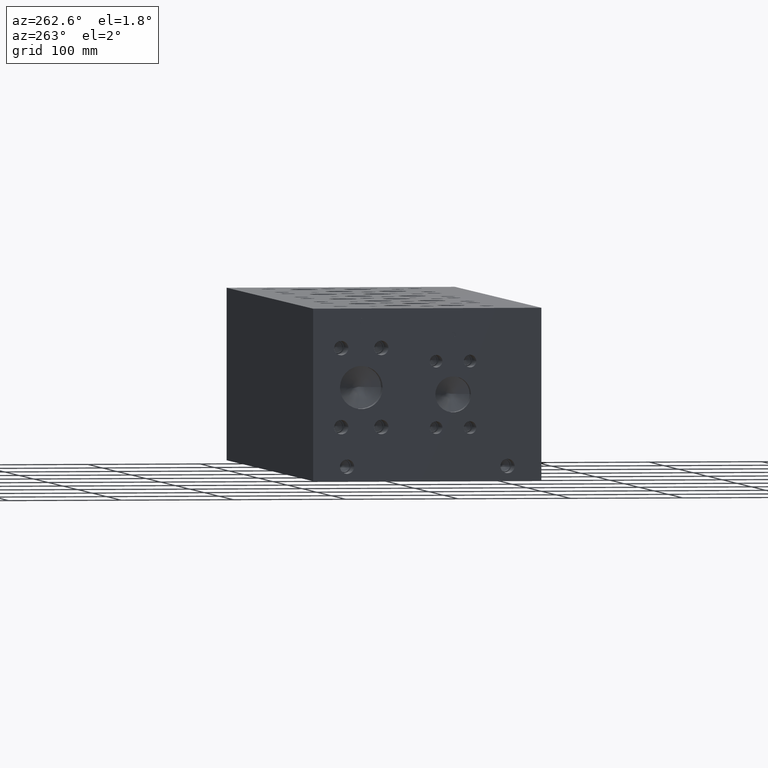
[diagram: clean part render]
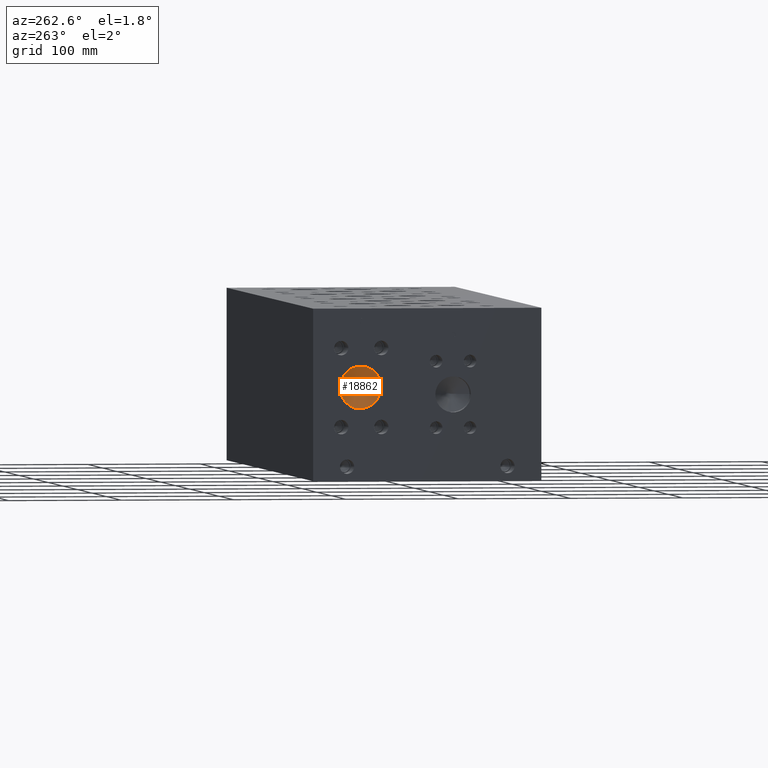
[diagram: same view with one face highlighted and labeled with its STEP entity id]
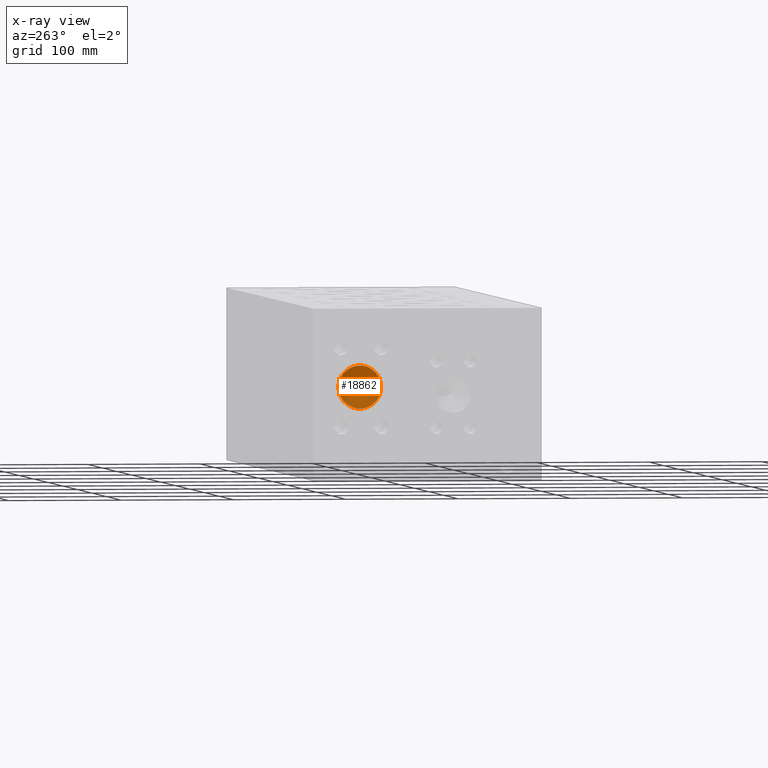
[diagram: x-ray of the same camera — body ghosted, the highlighted face saturated]
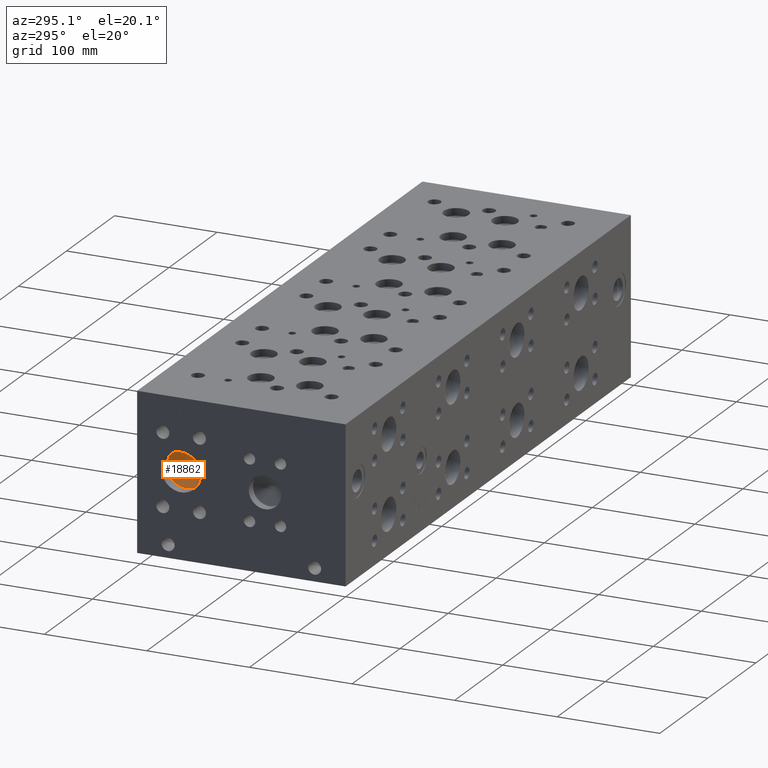
[diagram: same view with one face highlighted and labeled with its STEP entity id]
A machine part, auxiliary view. The second image highlights one B-rep face of the part: STEP entity #18862.
The next image is the same camera in x-ray: the body ghosted, the highlighted face saturated — about 0% of this face is hidden behind the body in this view.
A second angle (auxiliary view) of the same face is appended — the face is thin or edge-on in the first view.
In plain terms, the highlighted conical surface has half-angle 60 deg.
Its self-contained STEP definition (entity closure, byte-faithful):
#244=CONICAL_SURFACE('',#19951,9.525,1.0471975511966);
#755=CIRCLE('',#19952,19.05);
#756=CIRCLE('',#19953,19.05);
#2529=FACE_OUTER_BOUND('',#3677,.T.);
#3677=EDGE_LOOP('',(#15463,#15464,#15465,#15466));
#5430=LINE('',#31541,#6999);
#6999=VECTOR('',#23577,9.525);
#8577=VERTEX_POINT('',#31537);
#8578=VERTEX_POINT('',#31538);
#8579=VERTEX_POINT('',#31540);
#11052=EDGE_CURVE('',#8577,#8578,#755,.T.);
#11053=EDGE_CURVE('',#8578,#8579,#5430,.T.);
#11054=EDGE_CURVE('',#8578,#8577,#756,.T.);
#15463=ORIENTED_EDGE('',*,*,#11052,.T.);
#15464=ORIENTED_EDGE('',*,*,#11053,.T.);
#15465=ORIENTED_EDGE('',*,*,#11053,.F.);
#15466=ORIENTED_EDGE('',*,*,#11054,.T.);
#18862=ADVANCED_FACE('',(#2529),#244,.F.);
#19951=AXIS2_PLACEMENT_3D('',#31536,#23573,#23574);
#19952=AXIS2_PLACEMENT_3D('',#31539,#23575,#23576);
#19953=AXIS2_PLACEMENT_3D('',#31542,#23578,#23579);
#23573=DIRECTION('center_axis',(-1.,0.,0.));
#23574=DIRECTION('ref_axis',(0.,1.,0.));
#23575=DIRECTION('center_axis',(-1.,0.,0.));
#23576=DIRECTION('ref_axis',(0.,1.,0.));
#23577=DIRECTION('',(0.5,0.866025403784439,-1.06057523872491E-16));
#23578=DIRECTION('center_axis',(-1.,0.,0.));
#23579=DIRECTION('ref_axis',(0.,1.,0.));
#31536=CARTESIAN_POINT('Origin',(16.4977813140312,160.3502,82.55));
#31537=CARTESIAN_POINT('',(10.99852,179.4002,82.55));
#31538=CARTESIAN_POINT('',(10.99852,141.3002,82.55));
#31539=CARTESIAN_POINT('Origin',(10.99852,160.3502,82.55));
#31540=CARTESIAN_POINT('',(21.9970426280624,160.3502,82.55));
#31541=CARTESIAN_POINT('',(16.4977813140312,150.8252,82.55));
#31542=CARTESIAN_POINT('Origin',(10.99852,160.3502,82.55));